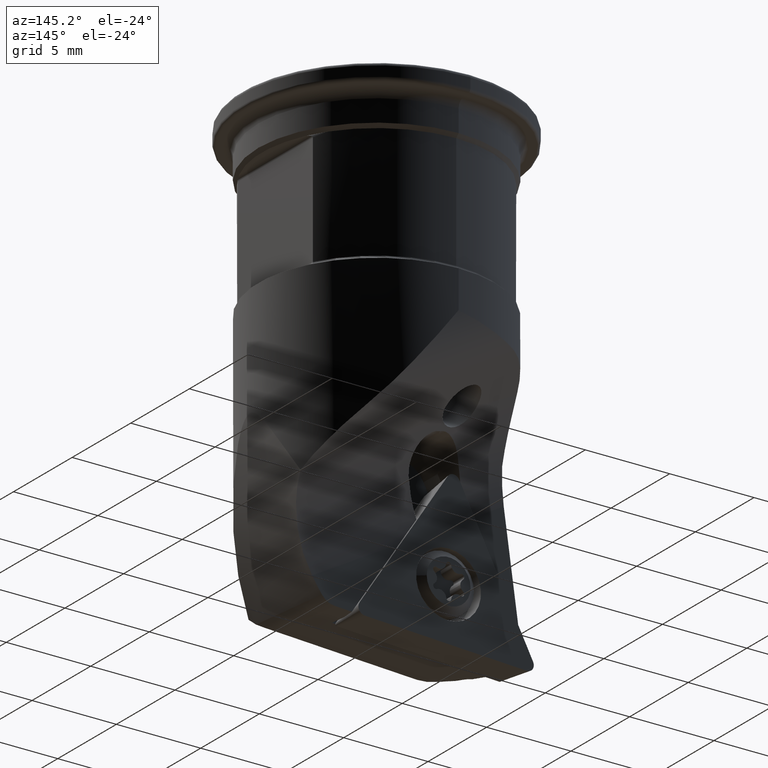
[diagram: clean part render]
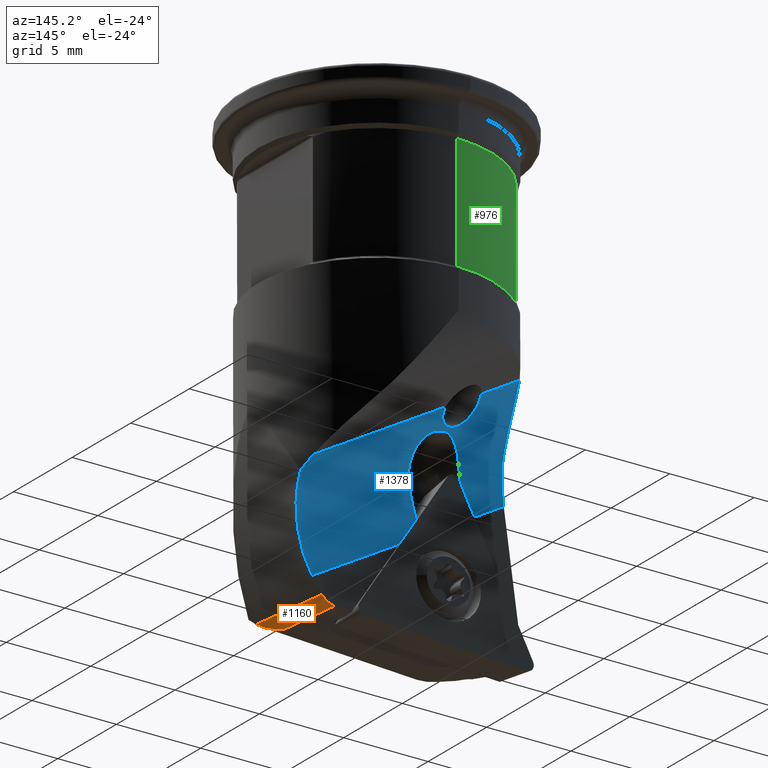
[diagram: same view with three faces highlighted in distinct colors, each labeled with its STEP entity id]
A machine part, auxiliary view with three faces highlighted in distinct colors.
Their STEP definitions:

[orange] entity #1160 — the highlighted face is a freeform B-spline surface patch.
#1160=ADVANCED_FACE('NONE',(#2518),#2519,.F.);
#1246=VERTEX_POINT('NONE',#2614);
#1422=VERTEX_POINT('NONE',#2817);
#1438=VERTEX_POINT('NONE',#2836);
#1456=EDGE_CURVE('NONE',#1812,#1246,#2855,.T.);
#1676=EDGE_CURVE('NONE',#1438,#1422,#3101,.F.);
#1684=EDGE_CURVE('NONE',#1422,#1812,#3110,.T.);
#1694=EDGE_CURVE('NONE',#1438,#1246,#3121,.T.);
#1812=VERTEX_POINT('NONE',#3246);
#2518=FACE_OUTER_BOUND('',#4589,.T.);
#2519=B_SPLINE_SURFACE_WITH_KNOTS('',3,3,((#4590,#4591,#4592,#4593,#4594,#4595,#4596,#4597,#4598,#4599,#4600,#4601,#4602,#4603),(#4604,#4605,#4606,#4607,#4608,#4609,#4610,#4611,#4612,#4613,#4614,#4615,#4616,#4617),(#4618,#4619,#4620,#4621,#4622,#4623,#4624,#4625,#4626,#4627,#4628,#4629,#4630,#4631),(#4632,#4633,#4634,#4635,#4636,#4637,#4638,#4639,#4640,#4641,#4642,#4643,#4644,#4645),(#4646,#4647,#4648,#4649,#4650,#4651,#4652,#4653,#4654,#4655,#4656,#4657,#4658,#4659),(#4660,#4661,#4662,#4663,#4664,#4665,#4666,#4667,#4668,#4669,#4670,#4671,#4672,#4673),(#4674,#4675,#4676,#4677,#4678,#4679,#4680,#4681,#4682,#4683,#4684,#4685,#4686,#4687),(#4688,#4689,#4690,#4691,#4692,#4693,#4694,#4695,#4696,#4697,#4698,#4699,#4700,#4701),(#4702,#4703,#4704,#4705,#4706,#4707,#4708,#4709,#4710,#4711,#4712,#4713,#4714,#4715),(#4716,#4717,#4718,#4719,#4720,#4721,#4722,#4723,#4724,#4725,#4726,#4727,#4728,#4729),(#4730,#4731,#4732,#4733,#4734,#4735,#4736,#4737,#4738,#4739,#4740,#4741,#4742,#4743),(#4744,#4745,#4746,#4747,#4748,#4749,#4750,#4751,#4752,#4753,#4754,#4755,#4756,#4757),(#4758,#4759,#4760,#4761,#4762,#4763,#4764,#4765,#4766,#4767,#4768,#4769,#4770,#4771),(#4772,#4773,#4774,#4775,#4776,#4777,#4778,#4779,#4780,#4781,#4782,#4783,#4784,#4785),(#4786,#4787,#4788,#4789,#4790,#4791,#4792,#4793,#4794,#4795,#4796,#4797,#4798,#4799),(#4800,#4801,#4802,#4803,#4804,#4805,#4806,#4807,#4808,#4809,#4810,#4811,#4812,#4813),(#4814,#4815,#4816,#4817,#4818,#4819,#4820,#4821,#4822,#4823,#4824,#4825,#4826,#4827),(#4828,#4829,#4830,#4831,#4832,#4833,#4834,#4835,#4836,#4837,#4838,#4839,#4840,#4841)),.UNSPECIFIED.,.F.,.F.,.F.,(4,2,2,2,2,2,2,2,4),(4,2,2,2,2,2,4),(0.0,0.165365540991544,0.20974729221418,0.333987088119517,0.419494584428359,0.500021107261791,0.66763325788609,0.838989168856719,1.0),(0.0,0.168959295695941,0.335019516221825,0.501260699784771,0.667395585924375,0.83334203553916,1.0),.UNSPECIFIED.);
#2614=CARTESIAN_POINT('',(2.4465805572055,-4.36560803021545,-25.711203464687));
#2817=CARTESIAN_POINT('',(3.52007766511861,0.400000000000001,-25.863857884927));
#2836=CARTESIAN_POINT('',(3.12003226631478,-5.78464938122243,-25.1089304992821));
#2855=B_SPLINE_CURVE_WITH_KNOTS('',3,(#5511,#5512,#5513,#5514),.UNSPECIFIED.,.F.,.F.,(4,4),(0.0,1.0),.UNSPECIFIED.);
#3101=B_SPLINE_CURVE_WITH_KNOTS('',3,(#5952,#5953,#5954,#5955,#5956,#5957,#5958),.UNSPECIFIED.,.F.,.F.,(4,3,4),(0.0,0.83334203553916,1.0),.UNSPECIFIED.);
#3110=B_SPLINE_CURVE_WITH_KNOTS('',3,(#6385,#6386,#6387,#6388,#6389,#6390,#6391,#6392,#6393,#6394),.UNSPECIFIED.,.F.,.F.,(4,3,3,4),(0.0,0.394826261489264,0.838989168856719,1.0),.UNSPECIFIED.);
#3121=B_SPLINE_CURVE_WITH_KNOTS('',3,(#6408,#6409,#6410,#6411,#6412,#6413,#6414),.UNSPECIFIED.,.F.,.F.,(4,3,4),(0.0,0.660984793681116,1.0),.UNSPECIFIED.);
#3246=CARTESIAN_POINT('',(2.76261178425502,0.400000000000001,-26.2805870780956));
#4589=EDGE_LOOP('',(#7579,#7580,#7581,#7582));
#4590=CARTESIAN_POINT('',(3.52007766511861,0.400000000000001,-25.863857884927));
#4591=CARTESIAN_POINT('',(3.49785859908684,0.0527029309977509,-25.8214865579522));
#4592=CARTESIAN_POINT('',(3.47559984657882,-0.294590808355054,-25.779111660774));
#4593=CARTESIAN_POINT('',(3.43136820094717,-0.983447712956225,-25.6950547317986));
#4594=CARTESIAN_POINT('',(3.40939688917052,-1.32500696565596,-25.6533733816446));
#4595=CARTESIAN_POINT('',(3.3653203788686,-2.00894550861584,-25.5699050870779));
#4596=CARTESIAN_POINT('',(3.34321493109456,-2.35132530137649,-25.5281182659441));
#4597=CARTESIAN_POINT('',(3.29889548064201,-3.03653960531569,-25.4444785710186));
#4598=CARTESIAN_POINT('',(3.27668248229696,-3.37937459371088,-25.4026242032544));
#4599=CARTESIAN_POINT('',(3.2321782836741,-4.06510296025605,-25.3188887731862));
#4600=CARTESIAN_POINT('',(3.20985507565967,-4.40799930735768,-25.2770537183806));
#4601=CARTESIAN_POINT('',(3.16504669928554,-5.09548055598773,-25.1931237947034));
#4602=CARTESIAN_POINT('',(3.14257096078567,-5.44006529927695,-25.1510143343568));
#4603=CARTESIAN_POINT('',(3.12003226631478,-5.78464938122254,-25.1089304992823));
#4604=CARTESIAN_POINT('',(3.4908155546609,0.400000000000001,-25.9047587209977));
#4605=CARTESIAN_POINT('',(3.46872366746001,0.0565423927536852,-25.8631141971028));
#4606=CARTESIAN_POINT('',(3.44668598869599,-0.287055811752539,-25.8213411852924));
#4607=CARTESIAN_POINT('',(3.40295186087386,-0.968635197967693,-25.7384143973419));
#4608=CARTESIAN_POINT('',(3.38125597800863,-1.30661160677452,-25.6972623890127));
#4609=CARTESIAN_POINT('',(3.33766660402138,-1.98320404380947,-25.6149683148104));
#4610=CARTESIAN_POINT('',(3.3157727938834,-2.3218203821834,-25.5738264974929));
#4611=CARTESIAN_POINT('',(3.27169038644257,-2.99910750035371,-25.4917686050515));
#4612=CARTESIAN_POINT('',(3.24966206023812,-3.33799013150642,-25.4506076322004));
#4613=CARTESIAN_POINT('',(3.20556884070598,-4.01578297204641,-25.3682086182237));
#4614=CARTESIAN_POINT('',(3.18347189218032,-4.35469619041762,-25.3270166408402));
#4615=CARTESIAN_POINT('',(3.13906847273469,-5.0341036127199,-25.244470728723));
#4616=CARTESIAN_POINT('',(3.11677122358721,-5.37459727042214,-25.2031026102643));
#4617=CARTESIAN_POINT('',(3.09434091287805,-5.71501684318129,-25.1618811049687));
#4618=CARTESIAN_POINT('',(3.45740806947879,0.400000000000001,-25.9427135213814));
#4619=CARTESIAN_POINT('',(3.43553910039841,0.060432435789202,-25.9016877304944));
#4620=CARTESIAN_POINT('',(3.41392815323442,-0.279323498562209,-25.8606938121143));
#4621=CARTESIAN_POINT('',(3.3710186345552,-0.953237609675944,-25.7791429197922));
#4622=CARTESIAN_POINT('',(3.3497209327859,-1.2873917924216,-25.7385904650612));
#4623=CARTESIAN_POINT('',(3.30686845528781,-1.95626039824655,-25.6575539438543));
#4624=CARTESIAN_POINT('',(3.28531336466759,-2.29097506376655,-25.6170702715));
#4625=CARTESIAN_POINT('',(3.2416522805163,-2.96031138482188,-25.5363172358091));
#4626=CARTESIAN_POINT('',(3.21982317095522,-3.29520321278493,-25.4957744333093));
#4627=CARTESIAN_POINT('',(3.17612129688408,-3.96497579450633,-25.4146057632475));
#4628=CARTESIAN_POINT('',(3.15422000244568,-4.29985922719528,-25.3740209504581));
#4629=CARTESIAN_POINT('',(3.11020508172094,-4.97113377053593,-25.2927310433055));
#4630=CARTESIAN_POINT('',(3.08809959745314,-5.30752421330641,-25.2520134824106));
#4631=CARTESIAN_POINT('',(3.06586679375927,-5.6438057681514,-25.2114804798937));
#4632=CARTESIAN_POINT('',(3.41252088323142,0.400000000000001,-25.9880249826777));
#4633=CARTESIAN_POINT('',(3.3909848239929,0.0654657669463138,-25.9477128135175));
#4634=CARTESIAN_POINT('',(3.36988255983448,-0.269253303020182,-25.9076752770675));
#4635=CARTESIAN_POINT('',(3.32783792937932,-0.933069342361102,-25.8277050022696));
#4636=CARTESIAN_POINT('',(3.30689878745459,-1.26216418136848,-25.7877819509965));
#4637=CARTESIAN_POINT('',(3.26477839476211,-1.92088072021881,-25.7081031612312));
#4638=CARTESIAN_POINT('',(3.24359696281337,-2.25050265634423,-25.6683480641335));
#4639=CARTESIAN_POINT('',(3.20058621512146,-2.90963305680206,-25.589061527938));
#4640=CARTESIAN_POINT('',(3.17903044558448,-3.23940259178558,-25.5492572013511));
#4641=CARTESIAN_POINT('',(3.13584490597834,-3.8988906534906,-25.4695891974179));
#4642=CARTESIAN_POINT('',(3.11419261209944,-4.22861126750584,-25.4297580324818));
#4643=CARTESIAN_POINT('',(3.07069853223037,-4.8894833568273,-25.3499856867709));
#4644=CARTESIAN_POINT('',(3.04886317494232,-5.22063413113107,-25.3100347006746));
#4645=CARTESIAN_POINT('',(3.02694774958797,-5.55164378591045,-25.2702559245783));
#4646=CARTESIAN_POINT('',(3.40288487643157,0.400000000000001,-25.9974555651798));
#4647=CARTESIAN_POINT('',(3.38142210845085,0.0665364378982995,-25.9572903540117));
#4648=CARTESIAN_POINT('',(3.3604251022138,-0.267107562825533,-25.9174529673737));
#4649=CARTESIAN_POINT('',(3.31855181135311,-0.928765537078879,-25.8378067211769));
#4650=CARTESIAN_POINT('',(3.29767936703224,-1.25677782441316,-25.7980087420405));
#4651=CARTESIAN_POINT('',(3.25570101172207,-1.91332602485987,-25.7186027031265));
#4652=CARTESIAN_POINT('',(3.23459495551477,-2.24186217748517,-25.6789953409139));
#4653=CARTESIAN_POINT('',(3.19172840055194,-2.89882615757321,-25.6000084022488));
#4654=CARTESIAN_POINT('',(3.17023163521334,-3.22750841818825,-25.5603576977218));
#4655=CARTESIAN_POINT('',(3.12715646582294,-3.88481400746773,-25.4810037031588));
#4656=CARTESIAN_POINT('',(3.10555689599457,-4.21343928840183,-25.4413309937208));
#4657=CARTESIAN_POINT('',(3.06217460078996,-4.87210536574907,-25.3618753430583));
#4658=CARTESIAN_POINT('',(3.0403979220806,-5.20214546099108,-25.3220831871855));
#4659=CARTESIAN_POINT('',(3.01855344993524,-5.53203827818165,-25.2824572412223));
#4660=CARTESIAN_POINT('',(3.36580474137749,0.400000000000001,-26.0326659022618));
#4661=CARTESIAN_POINT('',(3.34462712844032,0.0706277336002228,-25.993047495526));
#4662=CARTESIAN_POINT('',(3.32401081855628,-0.258902042955299,-25.9539579403018));
#4663=CARTESIAN_POINT('',(3.28272757266578,-0.912297714379714,-25.8755036691483));
#4664=CARTESIAN_POINT('',(3.26206720597537,-1.23616368253835,-25.8361546034486));
#4665=CARTESIAN_POINT('',(3.22056714551404,-1.8844151800009,-25.757737343785));
#4666=CARTESIAN_POINT('',(3.19972746948569,-2.20880097072378,-25.7186700699849));
#4667=CARTESIAN_POINT('',(3.15742694532079,-2.85750252788028,-25.6407901430339));
#4668=CARTESIAN_POINT('',(3.13616298213485,-3.18203552907291,-25.6017137942714));
#4669=CARTESIAN_POINT('',(3.09352482216213,-3.83101248176939,-25.5235379599631));
#4670=CARTESIAN_POINT('',(3.07213477376898,-4.1554578558731,-25.4844614901325));
#4671=CARTESIAN_POINT('',(3.02919688406379,-4.805710754434,-25.406191511155));
#4672=CARTESIAN_POINT('',(3.00765359638873,-5.13151760381902,-25.3669910742668));
#4673=CARTESIAN_POINT('',(2.98609045235445,-5.45715884913337,-25.3279259666687));
#4674=CARTESIAN_POINT('',(3.33727232818865,0.400000000000001,-26.0571506155492));
#4675=CARTESIAN_POINT('',(3.31631862804236,0.0736905498717947,-26.0179112916208));
#4676=CARTESIAN_POINT('',(3.29597083162215,-0.252746687076926,-25.9793671990909));
#4677=CARTESIAN_POINT('',(3.25506933978726,-0.899924621148764,-25.9017642832354));
#4678=CARTESIAN_POINT('',(3.23452471996693,-1.22066683634648,-25.8627248841218));
#4679=CARTESIAN_POINT('',(3.19332203888428,-1.86268480387031,-25.7849911285306));
#4680=CARTESIAN_POINT('',(3.17266415011886,-2.18396085362738,-25.7462978606619));
#4681=CARTESIAN_POINT('',(3.13081819948275,-2.82650982539658,-25.6691690960556));
#4682=CARTESIAN_POINT('',(3.10974232959089,-3.14794720363495,-25.6304975703707));
#4683=CARTESIAN_POINT('',(3.06745934944288,-3.79071025613923,-25.5531613617183));
#4684=CARTESIAN_POINT('',(3.04624062270472,-4.11203692886627,-25.5145136554353));
#4685=CARTESIAN_POINT('',(3.00366752264597,-4.75602372262218,-25.4370832903592));
#4686=CARTESIAN_POINT('',(2.98231652069144,-5.07868324482662,-25.3982954745753));
#4687=CARTESIAN_POINT('',(2.96098489826364,-5.40117478259265,-25.3596027195711));
#4688=CARTESIAN_POINT('',(3.28654289765531,0.400000000000001,-26.0950557852394));
#4689=CARTESIAN_POINT('',(3.26595030522626,0.0789627971800464,-26.0564534645726));
#4690=CARTESIAN_POINT('',(3.24605527883113,-0.242205008238862,-26.0188650130675));
#4691=CARTESIAN_POINT('',(3.20585963572764,-0.878842315641055,-25.9428818925415));
#4692=CARTESIAN_POINT('',(3.18557127558301,-1.19431488031696,-25.9045111176508));
#4693=CARTESIAN_POINT('',(3.14496392192647,-1.82578417420927,-25.8281503759225));
#4694=CARTESIAN_POINT('',(3.12464530891478,-2.14178122115882,-25.7901616763783));
#4695=CARTESIAN_POINT('',(3.08356364512851,-2.77378208658742,-25.7142840438357));
#4696=CARTESIAN_POINT('',(3.06285509213518,-3.08986312782553,-25.6762749732745));
#4697=CARTESIAN_POINT('',(3.02130790571016,-3.72184615657713,-25.6003021177871));
#4698=CARTESIAN_POINT('',(3.00046363822353,-4.03774858100117,-25.562346733232));
#4699=CARTESIAN_POINT('',(2.9586520603239,-4.67087942767149,-25.4862770548415));
#4700=CARTESIAN_POINT('',(2.93768635808586,-4.98810752060388,-25.448160124979));
#4701=CARTESIAN_POINT('',(2.91676045773153,-5.30522048543884,-25.410084238646));
#4702=CARTESIAN_POINT('',(3.26569437158649,0.400000000000001,-26.1099481569129));
#4703=CARTESIAN_POINT('',(3.24524424649649,0.081140597265962,-26.0716046862367));
#4704=CARTESIAN_POINT('',(3.22547096218935,-0.23786561233166,-26.0343699210838));
#4705=CARTESIAN_POINT('',(3.18541548929506,-0.870194101428485,-25.9589783239074));
#4706=CARTESIAN_POINT('',(3.16514725434563,-1.18351982025609,-25.9208471808924));
#4707=CARTESIAN_POINT('',(3.12464662301512,-1.81068223031625,-25.844989555199));
#4708=CARTESIAN_POINT('',(3.10441472144773,-2.12451923606407,-25.8072644153843));
#4709=CARTESIAN_POINT('',(3.06364375142588,-2.75217478264583,-25.7318920568994));
#4710=CARTESIAN_POINT('',(3.04310257297491,-3.06603781926769,-25.6941456075681));
#4711=CARTESIAN_POINT('',(3.00190332668117,-3.69355063515574,-25.6187092174595));
#4712=CARTESIAN_POINT('',(2.98124173328559,-4.00720066414287,-25.5810246361991));
#4713=CARTESIAN_POINT('',(2.93979128177962,-4.63583379031396,-25.5054895805251));
#4714=CARTESIAN_POINT('',(2.91900336792838,-4.95081670149914,-25.4676373707709));
#4715=CARTESIAN_POINT('',(2.89824703638938,-5.26571984694074,-25.4298096648659));
#4716=CARTESIAN_POINT('',(3.22395107771534,0.400000000000001,-26.1369030510111));
#4717=CARTESIAN_POINT('',(3.20375328999901,0.0854320422116591,-26.0990745260338));
#4718=CARTESIAN_POINT('',(3.18422662082222,-0.22931652319231,-26.0625151561021));
#4719=CARTESIAN_POINT('',(3.14454155429562,-0.853177308248118,-25.9883338414997));
#4720=CARTESIAN_POINT('',(3.12439909137672,-1.16229338640194,-25.9507396772454));
#4721=CARTESIAN_POINT('',(3.08423443872972,-1.78100522874909,-25.8759677893436));
#4722=CARTESIAN_POINT('',(3.06421289261205,-2.0906012900602,-25.8387914885122));
#4723=CARTESIAN_POINT('',(3.02401856530073,-2.7097122683352,-25.7644254133542));
#4724=CARTESIAN_POINT('',(3.00381471195327,-3.0192359965943,-25.7271897282912));
#4725=CARTESIAN_POINT('',(2.96333408143028,-3.63801918155578,-25.6527858837297));
#4726=CARTESIAN_POINT('',(2.94305661406928,-3.94727864047715,-25.615618956419));
#4727=CARTESIAN_POINT('',(2.90235629845818,-4.56713409718989,-25.541114016224));
#4728=CARTESIAN_POINT('',(2.88193343675691,-4.87773010185882,-25.5037755075311));
#4729=CARTESIAN_POINT('',(2.86150468533614,-5.18829700814426,-25.466444767209));
#4730=CARTESIAN_POINT('',(3.20298498769351,0.400000000000001,-26.1489744794193));
#4731=CARTESIAN_POINT('',(3.18289848543449,0.0875420343428284,-26.1114013322412));
#4732=CARTESIAN_POINT('',(3.16351254073496,-0.225113998757833,-26.075176308915));
#4733=CARTESIAN_POINT('',(3.12409522677807,-0.844821783752061,-26.0016416421532));
#4734=CARTESIAN_POINT('',(3.10407996990161,-1.15187745487558,-25.9643600240909));
#4735=CARTESIAN_POINT('',(3.06417961659912,-1.76645071962592,-25.8901953952668));
#4736=CARTESIAN_POINT('',(3.04429519086384,-2.07396859684082,-25.8533138071003));
#4737=CARTESIAN_POINT('',(3.00436836469713,-2.68888656173411,-25.7794472751058));
#4738=CARTESIAN_POINT('',(2.98432573794259,-2.99628538402236,-25.7424626469585));
#4739=CARTESIAN_POINT('',(2.94419193373308,-3.61079738906464,-25.6685633105859));
#4740=CARTESIAN_POINT('',(2.9241008723445,-3.91791051112839,-25.6316486423048));
#4741=CARTESIAN_POINT('',(2.8837653051037,-4.53347389782871,-25.557647580885));
#4742=CARTESIAN_POINT('',(2.86352049546647,-4.84192423950785,-25.5205610520325));
#4743=CARTESIAN_POINT('',(2.8432498532006,-5.15036736638669,-25.4834782194924));
#4744=CARTESIAN_POINT('',(3.1385719235061,0.400000000000001,-26.1846031657579));
#4745=CARTESIAN_POINT('',(3.11877414966315,0.0941419770051172,-26.1478527872579));
#4746=CARTESIAN_POINT('',(3.09964728344498,-0.211935375142136,-26.1124519626725));
#4747=CARTESIAN_POINT('',(3.06074579579725,-0.818599420940833,-26.0405526862499));
#4748=CARTESIAN_POINT('',(3.04098725046326,-1.11919002107495,-26.0040822403145));
#4749=CARTESIAN_POINT('',(3.00166101791963,-1.72078714078724,-25.9315403164172));
#4750=CARTESIAN_POINT('',(2.9820940672408,-2.0217939014995,-25.8954702604803));
#4751=CARTESIAN_POINT('',(2.94292098228734,-2.62361501019285,-25.823224116548));
#4752=CARTESIAN_POINT('',(2.92331550802582,-2.92443191185631,-25.7870474994379));
#4753=CARTESIAN_POINT('',(2.88411658505772,-3.52575116502707,-25.7147622241273));
#4754=CARTESIAN_POINT('',(2.86452318314725,-3.82625349710323,-25.6786536070557));
#4755=CARTESIAN_POINT('',(2.82518654482163,-4.42856530016639,-25.606269858204));
#4756=CARTESIAN_POINT('',(2.80544301095079,-4.73037484108227,-25.569994598231));
#4757=CARTESIAN_POINT('',(2.78564425542432,-5.03219388547477,-25.5337253318692));
#4758=CARTESIAN_POINT('',(3.09304661481379,0.400000000000001,-26.2048071722728));
#4759=CARTESIAN_POINT('',(3.0735236248145,0.0988692135510263,-26.1686574755314));
#4760=CARTESIAN_POINT('',(3.05463087008834,-0.202538862000749,-26.1337196685042));
#4761=CARTESIAN_POINT('',(3.01631185138192,-0.800049297727606,-26.062936443667));
#4762=CARTESIAN_POINT('',(2.99689970952648,-1.09615378730164,-26.0271157755469));
#4763=CARTESIAN_POINT('',(2.95819338544261,-1.68875766240379,-25.9558104585504));
#4764=CARTESIAN_POINT('',(2.93889980314923,-1.98525725520246,-25.9203270562438));
#4765=CARTESIAN_POINT('',(2.90017168753597,-2.57797826391037,-25.8492334009888));
#4766=CARTESIAN_POINT('',(2.88087049552285,-2.87429024580288,-25.8136427867287));
#4767=CARTESIAN_POINT('',(2.84231975681202,-3.46665485712229,-25.7425243988252));
#4768=CARTESIAN_POINT('',(2.82307020757866,-3.76270740936924,-25.706996663276));
#4769=CARTESIAN_POINT('',(2.78434991478795,-4.3561168073904,-25.6357703793985));
#4770=CARTESIAN_POINT('',(2.76487856314752,-4.65347379413405,-25.6000716825096));
#4771=CARTESIAN_POINT('',(2.7452576585872,-4.95083086723157,-25.5643708546658));
#4772=CARTESIAN_POINT('',(2.99895087536387,0.400000000000001,-26.2385841825754));
#4773=CARTESIAN_POINT('',(2.98003347327519,0.108656819931031,-26.2036774854997));
#4774=CARTESIAN_POINT('',(2.9616821595849,-0.182981448981947,-26.1695948449585));
#4775=CARTESIAN_POINT('',(2.92478105578897,-0.761318361706205,-26.1010279412802));
#4776=CARTESIAN_POINT('',(2.90623968205357,-1.04801578769695,-26.0665598718407));
#4777=CARTESIAN_POINT('',(2.8690438541854,-1.62185295510702,-25.9978012444735));
#4778=CARTESIAN_POINT('',(2.85038959461002,-1.90899292286851,-25.9635114735396));
#4779=CARTESIAN_POINT('',(2.81257074750826,-2.48304629484493,-25.8947830827786));
#4780=CARTESIAN_POINT('',(2.79377547619218,-2.77023753580864,-25.8603841583657));
#4781=CARTESIAN_POINT('',(2.75622829569617,-3.34457320232407,-25.7916244809955));
#4782=CARTESIAN_POINT('',(2.73747638196432,-3.63171731884247,-25.7572637708385));
#4783=CARTESIAN_POINT('',(2.69966432019239,-4.2072652274521,-25.6883701576839));
#4784=CARTESIAN_POINT('',(2.68060318618324,-4.495669136842,-25.6538371022522));
#4785=CARTESIAN_POINT('',(2.6613046688769,-4.7839631752109,-25.6192977770763));
#4786=CARTESIAN_POINT('',(2.95077128895827,0.400000000000001,-26.2523159674592));
#4787=CARTESIAN_POINT('',(2.932185805109,0.113722272208677,-26.2180522185952));
#4788=CARTESIAN_POINT('',(2.91409435691817,-0.172807710640235,-26.1843239243969));
#4789=CARTESIAN_POINT('',(2.87790528481265,-0.741108736373636,-26.1167617676471));
#4790=CARTESIAN_POINT('',(2.8598128293563,-1.02287700183371,-26.0829391539862));
#4791=CARTESIAN_POINT('',(2.82338662332082,-1.58692659402678,-26.0153985422894));
#4792=CARTESIAN_POINT('',(2.80505283037466,-1.86920820231401,-25.9816810703129));
#4793=CARTESIAN_POINT('',(2.76769849220158,-2.43368813689749,-25.9141662269678));
#4794=CARTESIAN_POINT('',(2.74907916370727,-2.71624782812542,-25.8803789934381));
#4795=CARTESIAN_POINT('',(2.71181850483761,-3.28146966535623,-25.8128267279186));
#4796=CARTESIAN_POINT('',(2.69317723700431,-3.56413133737994,-25.77906174228));
#4797=CARTESIAN_POINT('',(2.65558732217219,-4.13068188587948,-25.7113588167546));
#4798=CARTESIAN_POINT('',(2.63663769366043,-4.41457082528248,-25.677420725106));
#4799=CARTESIAN_POINT('',(2.61748287980206,-4.69826291951049,-25.643474730526));
#4800=CARTESIAN_POINT('',(2.85594799755165,0.400000000000001,-26.271759601251));
#4801=CARTESIAN_POINT('',(2.83794214352877,0.123450895812808,-26.2387070430344));
#4802=CARTESIAN_POINT('',(2.82022626994911,-0.15323295239317,-26.2057795421597));
#4803=CARTESIAN_POINT('',(2.78504166855962,-0.702113807837984,-26.140280699566));
#4804=CARTESIAN_POINT('',(2.76757384635743,-0.974306323363835,-26.1077128113201));
#4805=CARTESIAN_POINT('',(2.73230810209406,-1.5193360081161,-26.0425535030508));
#4806=CARTESIAN_POINT('',(2.71450989358932,-1.79217357161963,-26.009962193946));
#4807=CARTESIAN_POINT('',(2.67820855357417,-2.33807435676101,-25.9447511049365));
#4808=CARTESIAN_POINT('',(2.66003422408524,-2.61147911169685,-25.9121031414645));
#4809=CARTESIAN_POINT('',(2.62358952892999,-3.15854857059814,-25.8467924500818));
#4810=CARTESIAN_POINT('',(2.60531929886906,-3.43221263130593,-25.8141297880996));
#4811=CARTESIAN_POINT('',(2.56851630388269,-3.9807691090131,-25.7486461100536));
#4812=CARTESIAN_POINT('',(2.54998274717946,-4.25566176299944,-25.7158250071354));
#4813=CARTESIAN_POINT('',(2.5313230888357,-4.53032206163457,-25.6830148808888));
#4814=CARTESIAN_POINT('',(2.80925503875787,0.400000000000001,-26.2778064045709));
#4815=CARTESIAN_POINT('',(2.79150077027261,0.128119891217402,-26.2453242555239));
#4816=CARTESIAN_POINT('',(2.77392294995502,-0.143822491137143,-26.2128487533207));
#4817=CARTESIAN_POINT('',(2.73909187630213,-0.683316640317292,-26.1484341751249));
#4818=CARTESIAN_POINT('',(2.72183822892947,-0.950863680190276,-26.1164954560737));
#4819=CARTESIAN_POINT('',(2.68702112260276,-1.48666351676761,-26.052530384093));
#4820=CARTESIAN_POINT('',(2.66945734669771,-1.75491676482891,-26.020503973586));
#4821=CARTESIAN_POINT('',(2.63373531796122,-2.29181245619833,-25.9563861147));
#4822=CARTESIAN_POINT('',(2.61582797471711,-2.56069934061318,-25.9242681076153));
#4823=CARTESIAN_POINT('',(2.57990818988285,-3.09874603345551,-25.8599963806802));
#4824=CARTESIAN_POINT('',(2.56189589014023,-3.36790518885614,-25.827842742375));
#4825=CARTESIAN_POINT('',(2.52564738670822,-3.90748477938296,-25.763391811897));
#4826=CARTESIAN_POINT('',(2.50741055366341,-4.17790567680209,-25.7310944946055));
#4827=CARTESIAN_POINT('',(2.48908928144474,-4.4481425074289,-25.6988278100066));
#4828=CARTESIAN_POINT('',(2.76261178425502,0.400000000000001,-26.2805870780956));
#4829=CARTESIAN_POINT('',(2.74503106011475,0.132606153101999,-26.2486315520876));
#4830=CARTESIAN_POINT('',(2.72742546164112,-0.134785803294046,-26.2166775621312));
#4831=CARTESIAN_POINT('',(2.69245138267586,-0.665207072455911,-26.1532935557921));
#4832=CARTESIAN_POINT('',(2.67508401681207,-0.928232518013161,-26.1218639564795));
#4833=CARTESIAN_POINT('',(2.64025186927832,-1.45500928433519,-26.0589206146195));
#4834=CARTESIAN_POINT('',(2.62278700224933,-1.71876108375037,-26.0274068176941));
#4835=CARTESIAN_POINT('',(2.58777448016505,-2.24675590528239,-25.9643231652438));
#4836=CARTESIAN_POINT('',(2.57022678827269,-2.51099975742925,-25.9327532095947));
#4837=CARTESIAN_POINT('',(2.53507118433235,-3.03962804684764,-25.8695991689293));
#4838=CARTESIAN_POINT('',(2.51746336276667,-3.30401198716936,-25.8380151402725));
#4839=CARTESIAN_POINT('',(2.48210610025572,-3.83413304960725,-25.7746881270687));
#4840=CARTESIAN_POINT('',(2.46435637532394,-4.09987111584317,-25.7429450413222));
#4841=CARTESIAN_POINT('',(2.4465805572055,-4.36560803021545,-25.711203464687));
#5511=CARTESIAN_POINT('',(2.76261178425502,0.400000000000001,-26.2805870780956));
#5512=CARTESIAN_POINT('',(2.6581645668627,-1.18858890188461,-26.0907390522002));
#5513=CARTESIAN_POINT('',(2.55283814167095,-2.77712628291309,-25.9009434382802));
#5514=CARTESIAN_POINT('',(2.4465805572055,-4.36560803021545,-25.711203464687));
#5952=CARTESIAN_POINT('',(3.52007766511861,0.4,-25.863857884927));
#5953=CARTESIAN_POINT('',(3.41016078140111,-1.31806553409469,-25.6542485245074));
#5954=CARTESIAN_POINT('',(3.29927414018667,-3.03605792364283,-25.4445477491529));
#5955=CARTESIAN_POINT('',(3.18730514989005,-4.75397594920929,-25.2348157737255));
#5956=CARTESIAN_POINT('',(3.16491275491925,-5.09753802701358,-25.1928720068009));
#5957=CARTESIAN_POINT('',(3.14250366100198,-5.44109421575663,-25.1508886734404));
#5958=CARTESIAN_POINT('',(3.12003226631478,-5.78464938122242,-25.1089304992821));
#6385=CARTESIAN_POINT('',(3.5200776651186,0.400000000000001,-25.863857884927));
#6386=CARTESIAN_POINT('',(3.45178242153466,0.400000000000001,-25.9593169109009));
#6387=CARTESIAN_POINT('',(3.36406389500227,0.400000000000001,-26.0410571412819));
#6388=CARTESIAN_POINT('',(3.26785196171865,0.400000000000001,-26.1079313298718));
#6389=CARTESIAN_POINT('',(3.15961759086017,0.400000000000001,-26.1831619741554));
#6390=CARTESIAN_POINT('',(3.0341895253102,0.400000000000001,-26.2347520515535));
#6391=CARTESIAN_POINT('',(2.90495854601378,0.400000000000001,-26.2617045390403));
#6392=CARTESIAN_POINT('',(2.85811179892878,0.400000000000001,-26.2714749235989));
#6393=CARTESIAN_POINT('',(2.810333439723,0.400000000000001,-26.2777421148672));
#6394=CARTESIAN_POINT('',(2.76261178425502,0.400000000000001,-26.2805870780956));
#6408=CARTESIAN_POINT('',(3.12003226631479,-5.78464938122266,-25.1089304992824));
#6409=CARTESIAN_POINT('',(3.01454362590646,-5.49873833398099,-25.3263455691586));
#6410=CARTESIAN_POINT('',(2.8643880008028,-5.18755577781913,-25.4866212939365));
#6411=CARTESIAN_POINT('',(2.70302763125936,-4.86689322961942,-25.5919997632884));
#6412=CARTESIAN_POINT('',(2.62026684841621,-4.70242729791282,-25.6460477593549));
#6413=CARTESIAN_POINT('',(2.53372483821254,-4.53480641957619,-25.6858329660796));
#6414=CARTESIAN_POINT('',(2.4465805572055,-4.36560803021545,-25.711203464687));
#7579=ORIENTED_EDGE('',*,*,#1676,.F.);
#7580=ORIENTED_EDGE('',*,*,#1694,.T.);
#7581=ORIENTED_EDGE('',*,*,#1456,.F.);
#7582=ORIENTED_EDGE('',*,*,#1684,.F.);

[blue] entity #1378 — the highlighted cylindrical surface (partial cylindrical patch) has radius 6 mm, axis along (0.866, -0, -0.5).
#716=EDGE_CURVE('NONE',#1222,#752,#2029,.F.);
#736=VERTEX_POINT('NONE',#2050);
#750=EDGE_CURVE('NONE',#758,#736,#2065,.T.);
#752=VERTEX_POINT('NONE',#2067);
#754=VERTEX_POINT('NONE',#2069);
#758=VERTEX_POINT('NONE',#2073);
#842=EDGE_CURVE('NONE',#1810,#1744,#2167,.T.);
#868=EDGE_CURVE('NONE',#1354,#1744,#2195,.T.);
#884=VERTEX_POINT('NONE',#2214);
#890=EDGE_CURVE('NONE',#1108,#1496,#2220,.F.);
#992=EDGE_CURVE('NONE',#752,#884,#2331,.F.);
#1072=EDGE_CURVE('NONE',#1108,#1354,#2421,.F.);
#1080=EDGE_CURVE('NONE',#1400,#1800,#2431,.F.);
#1096=EDGE_CURVE('NONE',#1830,#754,#2448,.F.);
#1108=VERTEX_POINT('NONE',#2461);
#1222=VERTEX_POINT('NONE',#2587);
#1242=EDGE_CURVE('NONE',#1882,#1314,#2610,.T.);
#1314=VERTEX_POINT('NONE',#2697);
#1354=VERTEX_POINT('NONE',#2743);
#1378=ADVANCED_FACE('NONE',(#2769),#2770,.F.);
#1382=EDGE_CURVE('NONE',#1496,#1800,#2774,.T.);
#1400=VERTEX_POINT('NONE',#2795);
#1496=VERTEX_POINT('NONE',#2898);
#1592=EDGE_CURVE('NONE',#754,#1810,#3006,.F.);
#1744=VERTEX_POINT('NONE',#3172);
#1764=EDGE_CURVE('NONE',#1830,#1882,#3193,.F.);
#1800=VERTEX_POINT('NONE',#3233);
#1810=VERTEX_POINT('NONE',#3244);
#1824=EDGE_CURVE('NONE',#758,#1222,#3258,.F.);
#1830=VERTEX_POINT('NONE',#3264);
#1852=EDGE_CURVE('NONE',#736,#1400,#3286,.F.);
#1882=VERTEX_POINT('NONE',#3319);
#1936=EDGE_CURVE('NONE',#1314,#884,#3381,.F.);
#2029=ELLIPSE('',#3494,6.0471057444518,6.0);
#2050=CARTESIAN_POINT('',(-6.96649577815182,0.684058895851017,-16.5035189826904));
#2065=B_SPLINE_CURVE_WITH_KNOTS('',3,(#3551,#3552,#3553,#3554,#3555,#3556,#3557,#3558,#3559,#3560,#3561,#3562),.UNSPECIFIED.,.F.,.F.,(4,2,2,2,2,4),(0.0,1.06849516743368,2.13699033486736,3.28163156986878,4.4262728048702,5.57091403987162),.UNSPECIFIED.);
#2067=CARTESIAN_POINT('',(-4.12377127921654,1.03994988714494,-17.137887627462));
#2069=CARTESIAN_POINT('',(-1.05818474557247,0.4,-22.0211873045247));
#2073=CARTESIAN_POINT('',(-7.26113325733689,0.4,-18.4399133114881));
#2167=B_SPLINE_CURVE_WITH_KNOTS('',3,(#3706,#3707,#3708,#3709,#3710,#3711,#3712,#3713,#3714,#3715,#3716,#3717,#3718,#3719,#3720,#3721,#3722,#3723,#3724,#3725),.UNSPECIFIED.,.F.,.F.,(4,2,2,2,2,2,2,2,2,4),(6.63652239754953,7.74995646911298,8.86339054067643,9.96933488671445,11.0752792327525,12.1812235787905,13.2871679248285,14.391811594401,15.4964552639734,16.6010989335459),.UNSPECIFIED.);
#2195=B_SPLINE_CURVE_WITH_KNOTS('',3,(#3757,#3758,#3759,#3760,#3761,#3762,#3763,#3764,#3765,#3766,#3767,#3768,#3769,#3770,#3771,#3772,#3773,#3774),.UNSPECIFIED.,.F.,.F.,(4,2,2,2,2,2,2,2,4),(0.0,0.958743457869818,1.91748691573964,2.87623037360946,3.83497383147927,4.79371728934909,5.75246074721891,6.71120420508873,7.66994766295855),.UNSPECIFIED.);
#2214=CARTESIAN_POINT('',(-2.19887041482518,2.23004525094537,-16.3811160470509));
#2220=B_SPLINE_CURVE_WITH_KNOTS('',3,(#3804,#3805,#3806,#3807,#3808,#3809,#3810,#3811,#3812,#3813,#3814,#3815),.UNSPECIFIED.,.F.,.F.,(4,2,2,2,2,4),(0.418127527761187,0.471362272912532,0.942724545825065,1.41500780110349,1.88729105638192,2.18581464520765),.UNSPECIFIED.);
#2331=B_SPLINE_CURVE_WITH_KNOTS('',3,(#3965,#3966,#3967,#3968,#3969,#3970,#3971,#3972,#3973,#3974,#3975,#3976,#3977,#3978,#3979,#3980,#3981,#3982,#3983,#3984,#3985,#3986,#3987,#3988,#3989,#3990,#3991,#3992,#3993,#3994,#3995),.UNSPECIFIED.,.F.,.F.,(4,2,2,2,2,3,2,2,2,2,2,2,2,2,4),(-2.5531860038646,-1.87246557199876,-1.19174514013291,-0.595872570066456,-0.297936285033227,0.0,0.318404221325674,0.636808442651348,1.2736168853027,1.9150829506874,2.55654901607211,3.11595333361475,3.39565549238607,3.67535765115739,4.1925219745574),.UNSPECIFIED.);
#2421=LINE('',#4439,#4440);
#2431=LINE('',#4451,#4452);
#2448=ELLIPSE('',#4480,13.3016404520754,6.0);
#2461=CARTESIAN_POINT('',(-1.73644724220974,3.40000000000003,-15.6295922695099));
#2587=CARTESIAN_POINT('',(-5.28630010179152,0.4,-19.5800837654469));
#2610=B_SPLINE_CURVE_WITH_KNOTS('',3,(#5038,#5039,#5040,#5041,#5042,#5043,#5044,#5045,#5046,#5047,#5048,#5049,#5050,#5051,#5052,#5053,#5054,#5055,#5056,#5057,#5058,#5059,#5060,#5061),.UNSPECIFIED.,.F.,.F.,(4,2,2,2,2,2,2,2,2,2,2,4),(0.898585825756352,1.1981144343418,1.523676349444,1.84923826454621,2.17480017964841,2.50036209475061,2.87152052282979,3.24267895090896,3.98499580706731,4.60178197919672,4.91017506526142,5.21856815132612),.UNSPECIFIED.);
#2697=CARTESIAN_POINT('',(-0.944021921918042,1.64606186438607,-17.8601898579116));
#2743=CARTESIAN_POINT('',(6.11882341631132,3.40000000000003,-20.1648348987645));
#2769=FACE_OUTER_BOUND('',#5359,.T.);
#2770=CYLINDRICAL_SURFACE('',#5360,6.0);
#2774=B_SPLINE_CURVE_WITH_KNOTS('',3,(#5367,#5368,#5369,#5370,#5371,#5372,#5373,#5374,#5375,#5376,#5377,#5378,#5379,#5380,#5381),.UNSPECIFIED.,.F.,.F.,(4,3,2,2,2,2,4),(7.17990810436392,7.59803563212511,8.07042316103789,8.54281068995067,9.01508551993337,9.48736034991607,9.78682033586838),.UNSPECIFIED.);
#2795=CARTESIAN_POINT('',(-6.11882341631133,3.40000000000003,-13.0994262057022));
#2898=CARTESIAN_POINT('',(-2.87040432678669,2.2198413617824,-16.0048215256521));
#3006=LINE('',#5811,#5812);
#3172=CARTESIAN_POINT('',(6.42924304014983,2.76854364796456,-20.8289220561862));
#3193=ELLIPSE('',#6547,6.00823407598753,6.0);
#3233=CARTESIAN_POINT('',(-3.84211149587138,3.40000000000003,-14.4138864458354));
#3244=CARTESIAN_POINT('',(4.1006312991996,0.4,-24.9996311366736));
#3258=LINE('',#6678,#6679);
#3264=CARTESIAN_POINT('',(-2.04395641369016,0.457994562043636,-20.4910998945277));
#3286=B_SPLINE_CURVE_WITH_KNOTS('',3,(#6728,#6729,#6730,#6731,#6732,#6733,#6734,#6735,#6736,#6737,#6738,#6739,#6740,#6741,#6742,#6743,#6744,#6745,#6746,#6747),.UNSPECIFIED.,.F.,.F.,(4,2,2,2,2,2,2,2,2,4),(3.65690770992699,4.87587694656933,5.42319808552904,5.97051922448876,6.51784036344848,7.0651615024082,8.36260439073849,9.66004727906877,10.9574901673991,12.2549330557293),.UNSPECIFIED.);
#3319=CARTESIAN_POINT('',(-1.11621873882447,1.13252467347932,-18.6703121874834));
#3381=B_SPLINE_CURVE_WITH_KNOTS('',3,(#6864,#6865,#6866,#6867,#6868,#6869,#6870,#6871,#6872,#6873,#6874,#6875,#6876,#6877,#6878,#6879,#6880,#6881,#6882,#6883,#6884,#6885,#6886,#6887,#6888,#6889),.UNSPECIFIED.,.F.,.F.,(4,2,2,2,2,2,2,2,2,2,2,2,4),(3.203867840308,3.90740316036138,4.56402092521567,4.89232980764282,5.22063869006997,5.52903177613467,5.83742486219937,6.45421103432877,7.19652789048712,7.5676863185663,7.93884474664547,8.26440666174768,8.58996857684988),.UNSPECIFIED.);
#3494=AXIS2_PLACEMENT_3D('',#6994,#6995,#6996);
#3551=CARTESIAN_POINT('',(-7.54994408525613,0.781242851280781,-20.7034133114881));
#3552=CARTESIAN_POINT('',(-7.51453128975512,0.665904289385048,-20.3683066164854));
#3553=CARTESIAN_POINT('',(-7.46921439032065,0.566452956655056,-19.9929254335721));
#3554=CARTESIAN_POINT('',(-7.37083792260538,0.434967071393868,-19.2315389279224));
#3555=CARTESIAN_POINT('',(-7.31805949122975,0.402929427578221,-18.8454978405467));
#3556=CARTESIAN_POINT('',(-7.21554507758948,0.397285024979951,-18.1149650701797));
#3557=CARTESIAN_POINT('',(-7.1590231223981,0.426037163592903,-17.7227978047933));
#3558=CARTESIAN_POINT('',(-7.03987906399974,0.555786664314545,-16.9407495964931));
#3559=CARTESIAN_POINT('',(-6.97728061551291,0.656684652213376,-16.5508485661169));
#3560=CARTESIAN_POINT('',(-6.84028066836118,0.929280388577184,-15.8035759724842));
#3561=CARTESIAN_POINT('',(-6.76575764660184,1.10103115249169,-15.445872177934));
#3562=CARTESIAN_POINT('',(-6.67920213825929,1.30418919695898,-15.1184401451777));
#3706=CARTESIAN_POINT('',(2.84208070122056,0.830339455558063,-26.8495369436682));
#3707=CARTESIAN_POINT('',(3.05719084284149,0.684286233904817,-26.5527684366064));
#3708=CARTESIAN_POINT('',(3.27681838589209,0.5742847274388,-26.2412446160226));
#3709=CARTESIAN_POINT('',(3.70723936287625,0.431232718915655,-25.6087405091396));
#3710=CARTESIAN_POINT('',(3.91802090693403,0.398220581220548,-25.2877434557121));
#3711=CARTESIAN_POINT('',(4.31408307668253,0.401916995148331,-24.6629118865425));
#3712=CARTESIAN_POINT('',(4.51298146842202,0.438289724631214,-24.3377447023253));
#3713=CARTESIAN_POINT('',(4.8983066062389,0.587589846991524,-23.6842865143442));
#3714=CARTESIAN_POINT('',(5.08475573672712,0.700489489508785,-23.3560023701985));
#3715=CARTESIAN_POINT('',(5.43484997303021,0.997991328544416,-22.7210497782197));
#3716=CARTESIAN_POINT('',(5.59883341614769,1.18282500061316,-22.4139135731789));
#3717=CARTESIAN_POINT('',(5.89914556666399,1.60944557113536,-21.8427641859421));
#3718=CARTESIAN_POINT('',(6.03555974922173,1.85125878590618,-21.5788156091803));
#3719=CARTESIAN_POINT('',(6.27899746025681,2.36601380120947,-21.1111277300752));
#3720=CARTESIAN_POINT('',(6.39447365491097,2.65689788241707,-20.89095568594));
#3721=CARTESIAN_POINT('',(6.60668268081306,3.29097548318073,-20.5042105280756));
#3722=CARTESIAN_POINT('',(6.70352338462127,3.6341544236793,-20.3376727103302));
#3723=CARTESIAN_POINT('',(6.87607317267217,4.35049030360811,-20.0749189030773));
#3724=CARTESIAN_POINT('',(6.95199391248683,4.72424548800177,-19.978524407805));
#3725=CARTESIAN_POINT('',(7.01700607588765,5.10011720825074,-19.9197426455415));
#3757=CARTESIAN_POINT('',(3.76454034465691,5.90154522082568,-17.9013348987644));
#3758=CARTESIAN_POINT('',(4.00176154316858,5.75022404323753,-18.0528608612331));
#3759=CARTESIAN_POINT('',(4.23230607154905,5.5828692077239,-18.2087353863286));
#3760=CARTESIAN_POINT('',(4.67115215087124,5.22122407591709,-18.5325406119994));
#3761=CARTESIAN_POINT('',(4.87943251432246,5.02694522400784,-18.7005128075117));
#3762=CARTESIAN_POINT('',(5.26685804310208,4.61944207509654,-19.0523575250352));
#3763=CARTESIAN_POINT('',(5.44604612301721,4.40618074023025,-19.2363204601669));
#3764=CARTESIAN_POINT('',(5.77124693069701,3.97071227252183,-19.6234546351738));
#3765=CARTESIAN_POINT('',(5.91726110376572,3.74853561462404,-19.8266589394441));
#3766=CARTESIAN_POINT('',(6.17519670742555,3.30642463222067,-20.2539612794805));
#3767=CARTESIAN_POINT('',(6.28744837640338,3.08597194882937,-20.4786005341736));
#3768=CARTESIAN_POINT('',(6.48026761680289,2.65732225544266,-20.9497915502272));
#3769=CARTESIAN_POINT('',(6.56086700199605,2.44915395603455,-21.1963564102568));
#3770=CARTESIAN_POINT('',(6.69480729011763,2.05496627564181,-21.7091869529143));
#3771=CARTESIAN_POINT('',(6.74820917420692,1.86890689242424,-21.9755319022758));
#3772=CARTESIAN_POINT('',(6.83380547710232,1.52651326001949,-22.5238093113466));
#3773=CARTESIAN_POINT('',(6.86604215616369,1.37018628612768,-22.8057397159509));
#3774=CARTESIAN_POINT('',(6.89088133331995,1.23115979876805,-23.092422056186));
#3804=CARTESIAN_POINT('',(-2.87040432678669,2.2198413617824,-16.0048215256521));
#3805=CARTESIAN_POINT('',(-2.85283628937062,2.22444860314642,-16.0097977865987));
#3806=CARTESIAN_POINT('',(-2.8352473252676,2.22935312781275,-16.0144693039444));
#3807=CARTESIAN_POINT('',(-2.66202073489248,2.28056315510815,-16.0574445167957));
#3808=CARTESIAN_POINT('',(-2.50716108378203,2.35073033923306,-16.0704890461559));
#3809=CARTESIAN_POINT('',(-2.24101366080668,2.51760749470057,-16.0544164299868));
#3810=CARTESIAN_POINT('',(-2.11209103844121,2.62554368472025,-16.0241740873411));
#3811=CARTESIAN_POINT('',(-1.90682410947397,2.87031805896029,-15.9258539698742));
#3812=CARTESIAN_POINT('',(-1.83058814899869,3.00735486380641,-15.858044789074));
#3813=CARTESIAN_POINT('',(-1.7589153857156,3.22303541132937,-15.7382081230425));
#3814=CARTESIAN_POINT('',(-1.74129830098839,3.31154114120144,-15.6857640819506));
#3815=CARTESIAN_POINT('',(-1.73644724220974,3.40000000000003,-15.6295922695099));
#3965=CARTESIAN_POINT('',(-1.63710496337279,1.07779687998812,-18.4881657200213));
#3966=CARTESIAN_POINT('',(-1.52628401068605,1.18241609711794,-18.3200579077121));
#3967=CARTESIAN_POINT('',(-1.44781169799028,1.30735203008004,-18.1231397193635));
#3968=CARTESIAN_POINT('',(-1.37847788891251,1.56810265120316,-17.7201903413496));
#3969=CARTESIAN_POINT('',(-1.38707971701475,1.70370601097455,-17.5141149511133));
#3970=CARTESIAN_POINT('',(-1.47203112057343,1.92640553820237,-17.1616028064784));
#3971=CARTESIAN_POINT('',(-1.54606801740912,2.03246908357712,-16.9873796600469));
#3972=CARTESIAN_POINT('',(-1.7130349370152,2.14909979248736,-16.7532641871986));
#3973=CARTESIAN_POINT('',(-1.7778718189455,2.18094239967472,-16.6794908405066));
#3974=CARTESIAN_POINT('',(-1.92331786667676,2.22430391254487,-16.5464995860131));
#3975=CARTESIAN_POINT('',(-2.00395546859717,2.23575169222942,-16.4872895980771));
#3976=CARTESIAN_POINT('',(-2.08996226577981,2.23575169222942,-16.4376335505715));
#3977=CARTESIAN_POINT('',(-2.18187764722656,2.23575169222942,-16.3845661803506));
#3978=CARTESIAN_POINT('',(-2.27950469891795,2.22270150243803,-16.3426167991187));
#3979=CARTESIAN_POINT('',(-2.47924748784085,2.1740731809068,-16.282375842091));
#3980=CARTESIAN_POINT('',(-2.58137508904229,2.13857551037751,-16.2640586834699));
#3981=CARTESIAN_POINT('',(-2.88427912964172,2.00955586612678,-16.2425931911367));
#3982=CARTESIAN_POINT('',(-3.08225994849134,1.89343017438271,-16.2740847551127));
#3983=CARTESIAN_POINT('',(-3.42347668859889,1.66721213915811,-16.3921970130053));
#3984=CARTESIAN_POINT('',(-3.59301113327407,1.53925306789549,-16.4880238164031));
#3985=CARTESIAN_POINT('',(-3.8849807785031,1.29374651863145,-16.7422627716591));
#3986=CARTESIAN_POINT('',(-4.00722874039608,1.1763831342481,-16.9010675007595));
#3987=CARTESIAN_POINT('',(-4.16630825891712,0.991822610639488,-17.2186573403332));
#3988=CARTESIAN_POINT('',(-4.22189569792421,0.908401868942784,-17.3955835931954));
#3989=CARTESIAN_POINT('',(-4.25011149585805,0.805110484753238,-17.6735028503241));
#3990=CARTESIAN_POINT('',(-4.25062887977611,0.77406604825108,-17.7681970873987));
#3991=CARTESIAN_POINT('',(-4.23327414196378,0.719624976500575,-17.9549821833421));
#3992=CARTESIAN_POINT('',(-4.21538828563456,0.696208409165475,-18.0470659557591));
#3993=CARTESIAN_POINT('',(-4.14202717522723,0.639916920538649,-18.2960730802667));
#3994=CARTESIAN_POINT('',(-4.05996245139025,0.611738900407335,-18.4619957886956));
#3995=CARTESIAN_POINT('',(-3.94786631043262,0.593930207607286,-18.6056202191179));
#4439=CARTESIAN_POINT('',(-13.8394237902195,3.40000000000003,-8.64193550152075));
#4440=VECTOR('',#7457,1.0);
#4451=CARTESIAN_POINT('',(-13.8394237902195,3.40000000000003,-8.64193550152075));
#4452=VECTOR('',#7474,1.0);
#4480=AXIS2_PLACEMENT_3D('',#7487,#7488,#7489);
#5038=CARTESIAN_POINT('',(-2.44172286373762,0.579420599080603,-19.5407926689867));
#5039=CARTESIAN_POINT('',(-2.3383379019745,0.593758451982904,-19.5343115414169));
#5040=CARTESIAN_POINT('',(-2.23744539372064,0.610896321447472,-19.5177558699431));
#5041=CARTESIAN_POINT('',(-2.03958552384202,0.651739097579029,-19.4667785126934));
#5042=CARTESIAN_POINT('',(-1.93679248289087,0.677290727107614,-19.4291436757428));
#5043=CARTESIAN_POINT('',(-1.74051448853468,0.737681968776279,-19.3331111741203));
#5044=CARTESIAN_POINT('',(-1.64702922630955,0.772550439526073,-19.2747322918217));
#5045=CARTESIAN_POINT('',(-1.47599476652444,0.850858981923907,-19.1421366985869));
#5046=CARTESIAN_POINT('',(-1.39828361858399,0.894388941586659,-19.0678140532553));
#5047=CARTESIAN_POINT('',(-1.26240562931457,0.987588183853408,-18.910308816781));
#5048=CARTESIAN_POINT('',(-1.20422962564271,1.0372623228193,-18.8271370038571));
#5049=CARTESIAN_POINT('',(-1.10141905086222,1.14522256358815,-18.649063864782));
#5050=CARTESIAN_POINT('',(-1.05560419824227,1.20811368029591,-18.5469192850001));
#5051=CARTESIAN_POINT('',(-0.986264849228817,1.34108046258506,-18.3346747967996));
#5052=CARTESIAN_POINT('',(-0.962707343109353,1.4111549495445,-18.2245849355363));
#5053=CARTESIAN_POINT('',(-0.927229774975331,1.62459254674184,-17.8924838607174));
#5054=CARTESIAN_POINT('',(-0.95145806869284,1.77160888772477,-17.6684716028679));
#5055=CARTESIAN_POINT('',(-1.06774966280739,2.00370581839543,-17.2971935458354));
#5056=CARTESIAN_POINT('',(-1.15571698618401,2.10988412638688,-17.1197357642867));
#5057=CARTESIAN_POINT('',(-1.34143251336475,2.22510316100502,-16.8812904624669));
#5058=CARTESIAN_POINT('',(-1.41216662930874,2.25623633876734,-16.8061524070474));
#5059=CARTESIAN_POINT('',(-1.5678388644431,2.29829486473139,-16.6703449420852));
#5060=CARTESIAN_POINT('',(-1.65280376189801,2.30915354071565,-16.6096855895224));
#5061=CARTESIAN_POINT('',(-1.74182917752585,2.30915354071565,-16.558286741845));
#5359=EDGE_LOOP('',(#7907,#7908,#7909,#7910,#7911,#7912,#7913,#7914,#7915,#7916,#7917,#7918,#7919,#7920,#7921,#7922));
#5360=AXIS2_PLACEMENT_3D('',#7923,#7924,#7925);
#5367=CARTESIAN_POINT('',(-2.87040432678669,2.2198413617824,-16.0048215256521));
#5368=CARTESIAN_POINT('',(-3.00839089986996,2.18365419800694,-15.9657359306859));
#5369=CARTESIAN_POINT('',(-3.14499248207718,2.16644244086038,-15.9069229243834));
#5370=CARTESIAN_POINT('',(-3.26569550243144,2.16644244086038,-15.8372350030898));
#5371=CARTESIAN_POINT('',(-3.40206203592125,2.16644244086038,-15.7585037482711));
#5372=CARTESIAN_POINT('',(-3.53626960310909,2.18860806249016,-15.6551142191777));
#5373=CARTESIAN_POINT('',(-3.75957342424493,2.28058621880204,-15.4237476110371));
#5374=CARTESIAN_POINT('',(-3.84881886302977,2.35061624333713,-15.2960011121135));
#5375=CARTESIAN_POINT('',(-3.96852034321702,2.51740738212042,-15.0572410239513));
#5376=CARTESIAN_POINT('',(-4.00684395537558,2.62530037780997,-14.930462918334));
#5377=CARTESIAN_POINT('',(-4.02276933044062,2.87016293409793,-14.704340451587));
#5378=CARTESIAN_POINT('',(-4.00049254853574,3.00735722130026,-14.6052481377054));
#5379=CARTESIAN_POINT('',(-3.92873349864807,3.22329742592681,-14.4852672007048));
#5380=CARTESIAN_POINT('',(-3.89027000298903,3.31179714875479,-14.4448840196174));
#5381=CARTESIAN_POINT('',(-3.84211149587138,3.40000000000003,-14.4138864458354));
#5811=CARTESIAN_POINT('',(-16.4375000015728,0.4,-13.1419355015208));
#5812=VECTOR('',#8202,1.0);
#6547=AXIS2_PLACEMENT_3D('',#8399,#8400,#8401);
#6678=CARTESIAN_POINT('',(-16.4375000015728,0.4,-13.1419355015208));
#6679=VECTOR('',#8458,1.0);
#6728=CARTESIAN_POINT('',(-4.85556624986853,5.04216981002601,-13.0803067967852));
#6729=CARTESIAN_POINT('',(-5.14491812547995,4.763526437365,-12.98800233227));
#6730=CARTESIAN_POINT('',(-5.41219176688436,4.45791544160328,-12.9394270227268));
#6731=CARTESIAN_POINT('',(-5.75928965197452,3.98294025039694,-12.9631764650231));
#6732=CARTESIAN_POINT('',(-5.86472268404289,3.82628756436301,-12.984238875944));
#6733=CARTESIAN_POINT('',(-6.06192489067917,3.50549786814772,-13.0600089183192));
#6734=CARTESIAN_POINT('',(-6.15370516318144,3.34138161912166,-13.1147755495922));
#6735=CARTESIAN_POINT('',(-6.31853713319551,3.01811302278732,-13.257046917449));
#6736=CARTESIAN_POINT('',(-6.39179421322021,2.85867272363416,-13.3446811780785));
#6737=CARTESIAN_POINT('',(-6.51898357472284,2.55536614862716,-13.5447588118523));
#6738=CARTESIAN_POINT('',(-6.57298442937728,2.41149865616226,-13.6571567402523));
#6739=CARTESIAN_POINT('',(-6.72606747084674,1.96705736414185,-14.0535981328157));
#6740=CARTESIAN_POINT('',(-6.79677740620689,1.69186047363564,-14.3862609774018));
#6741=CARTESIAN_POINT('',(-6.89739829834779,1.21838896116963,-15.1237060823424));
#6742=CARTESIAN_POINT('',(-6.92705650482825,1.02034273323552,-15.5286694176216));
#6743=CARTESIAN_POINT('',(-6.96619566260151,0.705213470514951,-16.3780661149278));
#6744=CARTESIAN_POINT('',(-6.97565368306959,0.588316117806383,-16.822611651267));
#6745=CARTESIAN_POINT('',(-6.98685142833798,0.435622852014441,-17.7159643206606));
#6746=CARTESIAN_POINT('',(-6.98856208386246,0.400000000000001,-18.1648013890902));
#6747=CARTESIAN_POINT('',(-6.98856208386246,0.4,-18.5972823518669));
#6864=CARTESIAN_POINT('',(-3.51087122578702,1.46132048470228,-16.6707590923862));
#6865=CARTESIAN_POINT('',(-3.34224325240677,1.59617514256993,-16.5424118907231));
#6866=CARTESIAN_POINT('',(-3.14928979624208,1.7358826305226,-16.4502540814627));
#6867=CARTESIAN_POINT('',(-2.77548369041591,1.97209046242374,-16.3500930372808));
#6868=CARTESIAN_POINT('',(-2.56743261139632,2.08815045335111,-16.330110883932));
#6869=CARTESIAN_POINT('',(-2.25116791400414,2.21528463962179,-16.3669744710294));
#6870=CARTESIAN_POINT('',(-2.14485663304317,2.24988503379137,-16.3901193387983));
#6871=CARTESIAN_POINT('',(-1.93757858581277,2.29685922961607,-16.4584012613071));
#6872=CARTESIAN_POINT('',(-1.83660378834918,2.30915354071565,-16.5035685947738));
#6873=CARTESIAN_POINT('',(-1.65280376189801,2.30915354071565,-16.6096855895225));
#6874=CARTESIAN_POINT('',(-1.5678388644431,2.29829486473139,-16.6703449420852));
#6875=CARTESIAN_POINT('',(-1.41216662930874,2.25623633876734,-16.8061524070474));
#6876=CARTESIAN_POINT('',(-1.34143251336475,2.22510316100502,-16.8812904624669));
#6877=CARTESIAN_POINT('',(-1.15571698618401,2.10988412638688,-17.1197357642867));
#6878=CARTESIAN_POINT('',(-1.06774966280739,2.00370581839543,-17.2971935458354));
#6879=CARTESIAN_POINT('',(-0.95145806869284,1.77160888772477,-17.6684716028679));
#6880=CARTESIAN_POINT('',(-0.927229774975331,1.62459254674184,-17.8924838607174));
#6881=CARTESIAN_POINT('',(-0.962707343109353,1.41115494954451,-18.2245849355363));
#6882=CARTESIAN_POINT('',(-0.986264849228818,1.34108046258506,-18.3346747967996));
#6883=CARTESIAN_POINT('',(-1.05560419824227,1.20811368029591,-18.5469192850001));
#6884=CARTESIAN_POINT('',(-1.10141905086222,1.14522256358815,-18.649063864782));
#6885=CARTESIAN_POINT('',(-1.20422962564271,1.0372623228193,-18.8271370038571));
#6886=CARTESIAN_POINT('',(-1.26240562931457,0.987588183853408,-18.910308816781));
#6887=CARTESIAN_POINT('',(-1.39828361858399,0.894388941586659,-19.0678140532553));
#6888=CARTESIAN_POINT('',(-1.47599476652444,0.850858981923906,-19.1421366985869));
#6889=CARTESIAN_POINT('',(-1.56151199641701,0.811704710724995,-19.2084344952043));
#6994=CARTESIAN_POINT('',(-5.87913935449263,6.4,-19.2378078633137));
#6995=DIRECTION('',(0.88527900565778,0.113203213767907,-0.451072183285769));
#6996=DIRECTION('',(-0.0991969501332373,-0.901636967573957,-0.420964064723229));
#7457=DIRECTION('',(-0.866025403784438,0.0,0.500000000000001));
#7474=DIRECTION('',(-0.866025403784438,0.0,0.500000000000001));
#7487=CARTESIAN_POINT('',(0.245866302739746,6.4,-22.7740815283048));
#7488=DIRECTION('',(-0.833279472494879,0.113203213767907,-0.541138016693776));
#7489=DIRECTION('',(0.549202346135882,0.0572140477733561,-0.833728574379114));
#7907=ORIENTED_EDGE('',*,*,#1072,.T.);
#7908=ORIENTED_EDGE('',*,*,#868,.T.);
#7909=ORIENTED_EDGE('',*,*,#842,.F.);
#7910=ORIENTED_EDGE('',*,*,#1592,.F.);
#7911=ORIENTED_EDGE('',*,*,#1096,.F.);
#7912=ORIENTED_EDGE('',*,*,#1764,.T.);
#7913=ORIENTED_EDGE('',*,*,#1242,.T.);
#7914=ORIENTED_EDGE('',*,*,#1936,.T.);
#7915=ORIENTED_EDGE('',*,*,#992,.F.);
#7916=ORIENTED_EDGE('',*,*,#716,.F.);
#7917=ORIENTED_EDGE('',*,*,#1824,.F.);
#7918=ORIENTED_EDGE('',*,*,#750,.T.);
#7919=ORIENTED_EDGE('',*,*,#1852,.T.);
#7920=ORIENTED_EDGE('',*,*,#1080,.T.);
#7921=ORIENTED_EDGE('',*,*,#1382,.F.);
#7922=ORIENTED_EDGE('',*,*,#890,.F.);
#7923=CARTESIAN_POINT('',(-16.4375000015728,6.4,-13.1419355015208));
#7924=DIRECTION('',(0.866025403784438,-0.0,-0.500000000000001));
#7925=DIRECTION('',(-0.500000000000001,0.0,-0.866025403784438));
#8202=DIRECTION('',(-0.866025403784438,0.0,0.500000000000001));
#8399=CARTESIAN_POINT('',(-2.42228976498582,6.4,-21.2336209043635));
#8400=DIRECTION('',(0.891006524188365,0.0,-0.453990499739553));
#8401=DIRECTION('',(-0.453990499739553,0.0,-0.891006524188365));
#8458=DIRECTION('',(-0.866025403784438,0.0,0.500000000000001));

[green] entity #976 — the highlighted cylindrical surface (partial cylindrical patch) has radius 6.8 mm, axis along (0, 0, 1).
#960=VERTEX_POINT('',#2294);
#976=ADVANCED_FACE('NONE',(#2313),#2314,.T.);
#1038=VERTEX_POINT('NONE',#2382);
#1134=VERTEX_POINT('NONE',#2488);
#1166=EDGE_CURVE('NONE',#1038,#1906,#2525,.F.);
#1502=EDGE_CURVE('NONE',#1038,#1854,#2905,.T.);
#1836=EDGE_CURVE('NONE',#960,#1854,#3270,.F.);
#1854=VERTEX_POINT('NONE',#3288);
#1898=EDGE_CURVE('NONE',#1134,#1906,#3337,.T.);
#1906=VERTEX_POINT('NONE',#3347);
#1952=EDGE_CURVE('',#1134,#960,#3401,.T.);
#2294=CARTESIAN_POINT('',(-2.03288618376362E-015,6.8,-9.8));
#2313=FACE_OUTER_BOUND('',#3941,.T.);
#2314=CYLINDRICAL_SURFACE('',#3942,6.8);
#2382=CARTESIAN_POINT('',(-6.0,3.2,-3.2));
#2488=CARTESIAN_POINT('',(4.77612251667468E-016,6.8,-3.0));
#2525=B_SPLINE_CURVE_WITH_KNOTS('',3,(#4859,#4860,#4861,#4862,#4863,#4864,#4865,#4866,#4867,#4868,#4869,#4870),.UNSPECIFIED.,.F.,.F.,(4,2,2,2,2,4),(1.65909263513115,1.84188770873614,2.02468278234112,2.09892547205365,2.13604681690991,2.17316816176617),.UNSPECIFIED.);
#2905=LINE('',#5610,#5611);
#3270=CIRCLE('',#6695,6.8);
#3288=CARTESIAN_POINT('',(-6.0,3.2,-9.8));
#3337=CIRCLE('',#6812,6.8);
#3347=CARTESIAN_POINT('',(-6.2,2.79284800875379,-3.0));
#3401=LINE('',#6914,#6915);
#3941=EDGE_LOOP('',(#7343,#7344,#7345,#7346,#7347));
#3942=AXIS2_PLACEMENT_3D('',#7348,#7349,#7350);
#4859=CARTESIAN_POINT('',(-6.2,2.79284800875379,-3.0));
#4860=CARTESIAN_POINT('',(-6.17497456581727,2.84840337426119,-3.0));
#4861=CARTESIAN_POINT('',(-6.14678141823073,2.90881880117414,-3.00477222997822));
#4862=CARTESIAN_POINT('',(-6.09057866252095,3.02473142226084,-3.02978522095709));
#4863=CARTESIAN_POINT('',(-6.06251418488217,3.08035523979708,-3.04931060303246));
#4864=CARTESIAN_POINT('',(-6.02913122343564,3.14483967479462,-3.09478884144779));
#4865=CARTESIAN_POINT('',(-6.01927480851498,3.16363309087898,-3.11170569884759));
#4866=CARTESIAN_POINT('',(-6.00833648715912,3.18432937067853,-3.14186678062508));
#4867=CARTESIAN_POINT('',(-6.00532245221568,3.19000338762753,-3.1527124275305));
#4868=CARTESIAN_POINT('',(-6.00115511425787,3.1978363450805,-3.17559311847716));
#4869=CARTESIAN_POINT('',(-6.0,3.2,-3.18762621838125));
#4870=CARTESIAN_POINT('',(-6.0,3.2,-3.2));
#5610=CARTESIAN_POINT('',(-6.0,3.2,1.02935986504359));
#5611=VECTOR('',#8071,1.0);
#6695=AXIS2_PLACEMENT_3D('',#8463,#8464,#8465);
#6812=AXIS2_PLACEMENT_3D('',#8531,#8532,#8533);
#6914=CARTESIAN_POINT('',(-1.61648734836993E-015,6.8,-6.3998454763969));
#6915=VECTOR('',#8633,1.0);
#7343=ORIENTED_EDGE('',*,*,#1952,.T.);
#7344=ORIENTED_EDGE('',*,*,#1836,.T.);
#7345=ORIENTED_EDGE('',*,*,#1502,.F.);
#7346=ORIENTED_EDGE('',*,*,#1166,.T.);
#7347=ORIENTED_EDGE('',*,*,#1898,.F.);
#7348=CARTESIAN_POINT('',(1.26060226389638E-016,0.0,1.02935986504359));
#7349=DIRECTION('',(1.22464679914735E-016,0.0,1.0));
#7350=DIRECTION('',(0.0,-1.0,0.0));
#8071=DIRECTION('',(-1.22464679914735E-016,0.0,-1.0));
#8463=CARTESIAN_POINT('',(-1.20015386316441E-015,0.0,-9.8));
#8464=DIRECTION('',(-1.22464679914735E-016,-0.0,-1.0));
#8465=DIRECTION('',(0.0,-1.0,0.0));
#8531=CARTESIAN_POINT('',(-3.67394039744206E-016,0.0,-3.0));
#8532=DIRECTION('',(1.22464679914735E-016,0.0,1.0));
#8533=DIRECTION('',(0.0,-1.0,0.0));
#8633=DIRECTION('',(-1.22464679914735E-016,0.0,-1.0));